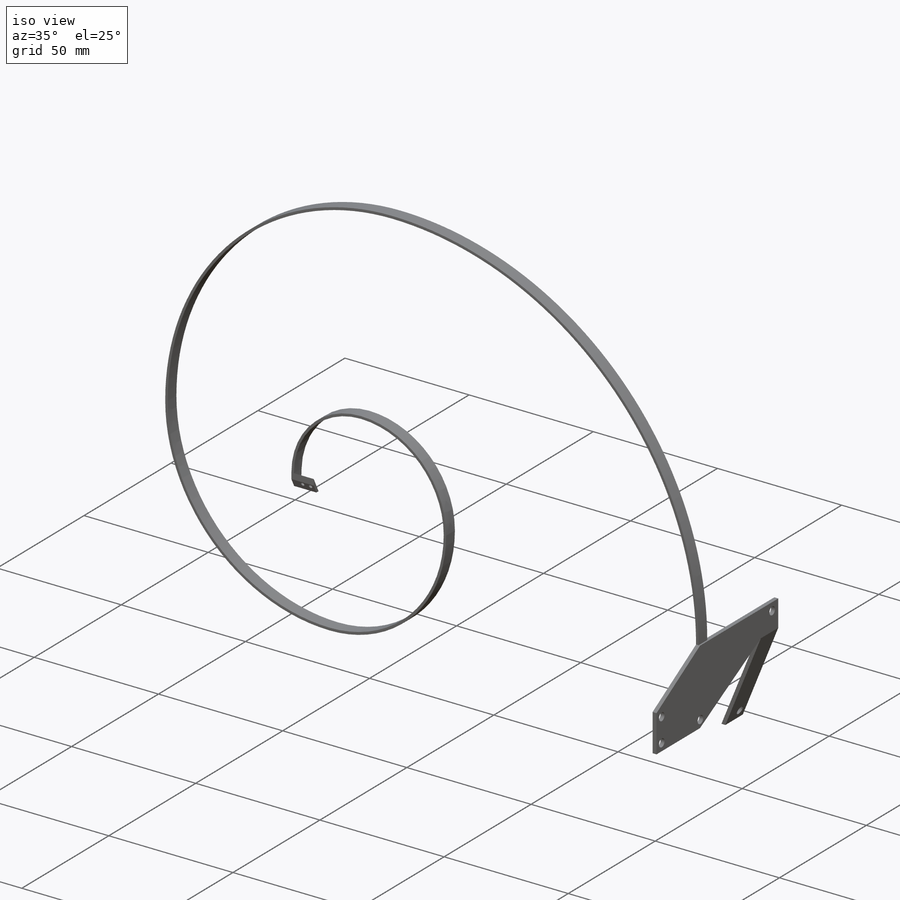
[diagram: iso view]
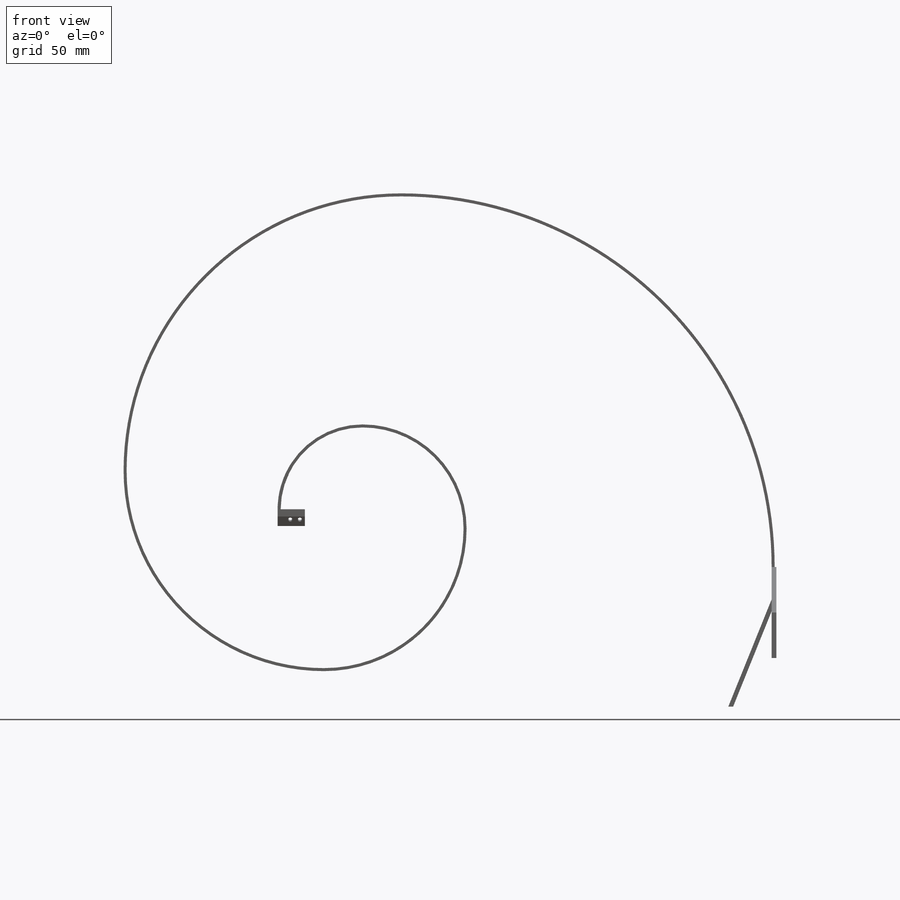
[diagram: front view]
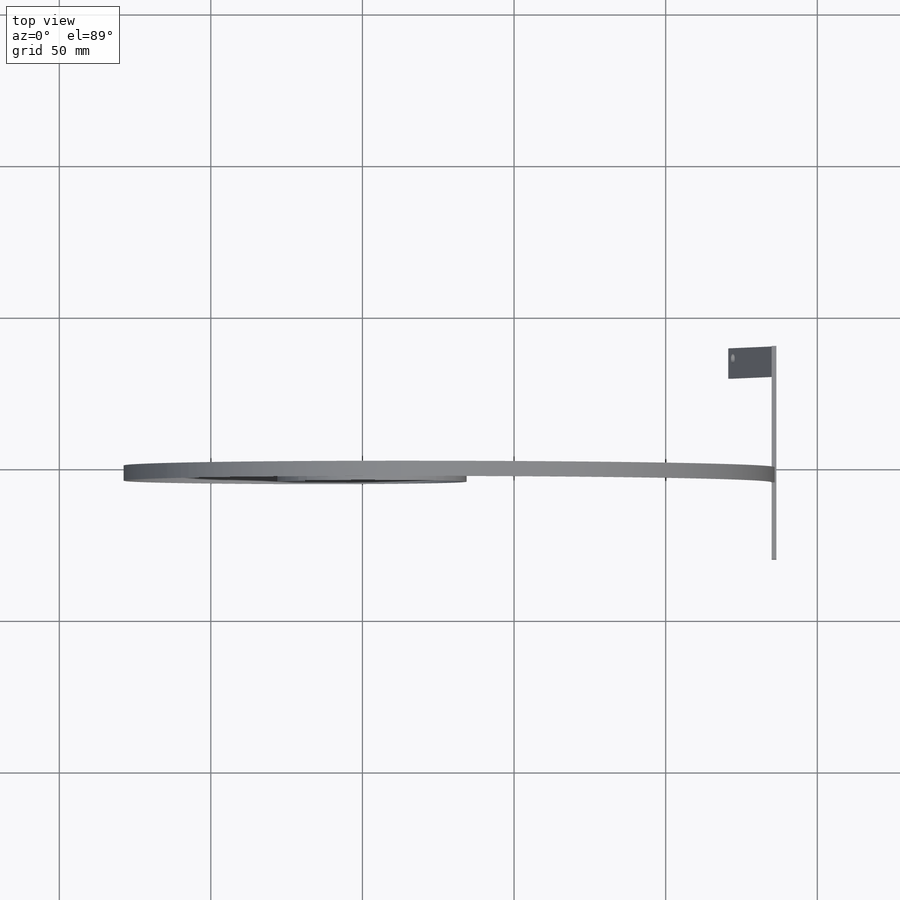
[diagram: top view]
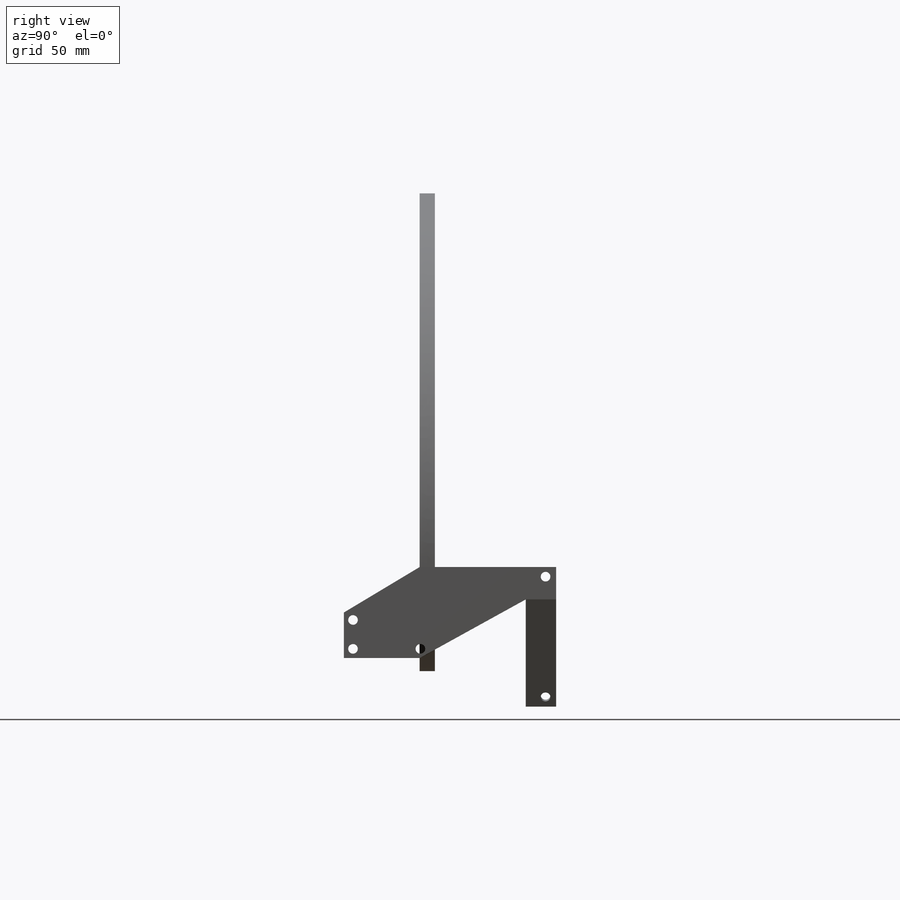
[diagram: right view]
SOLIDWORKS PART (.sldprt)
format: sldprt  version: not decoded by parser v0  size: 430,592 bytes
history: native  units: mm
features: sketch x14, extrude x7, cut_extrude x7, material x1 (+15 scaffold rows collapsed)
feature tree (44):
  scaffold x15  (default folders/planes/origin — collapsed)
  material  "Material <not specified>"
  sketch  "Sketch2"  dims[D1=28.575mm]
  extrude  "Extrude2"  Depth=5mm
  sketch  "Sketch3"
  extrude  "Extrude3"  Depth=10mm
  sketch  "Sketch6"
  cut_extrude  "Cut-Extrude2"  Depth=5mm
  sketch  "Sketch7"
  extrude  "Extrude5"  Depth=8mm
  sketch  "Sketch8"
  extrude  "Extrude6"  Depth=30mm
  sketch  "Sketch9"
  extrude  "Extrude7"  Depth=30mm
  sketch  "Sketch10"
  extrude  "Extrude8"  Depth=25mm
  sketch  "Sketch11"
  cut_extrude  "Cut-Extrude3"  Depth=5mm
  sketch  "Sketch12"
  cut_extrude  "Cut-Extrude4"  Depth=5mm
  sketch  "Sketch14"
  cut_extrude  "Cut-Extrude6"  Depth=15mm
  sketch  "Sketch15"  dims[c1.D1=3.175mm c2.D1=3.175mm]
  cut_extrude  "Cut-Extrude7"  Depth=10mm
  sketch  "Sketch17"
  extrude  "Extrude9"  Depth=10mm
  sketch  "Sketch18"
  cut_extrude  "Cut-Extrude8"  Depth=3mm
  sketch  "Sketch19"
  cut_extrude  "Cut-Extrude9"  Depth=3mm
decode coverage: 16 of 28 modeling features carry decoded parameters
note: suppression state not decoded; provenance and decode notes live in map.json
